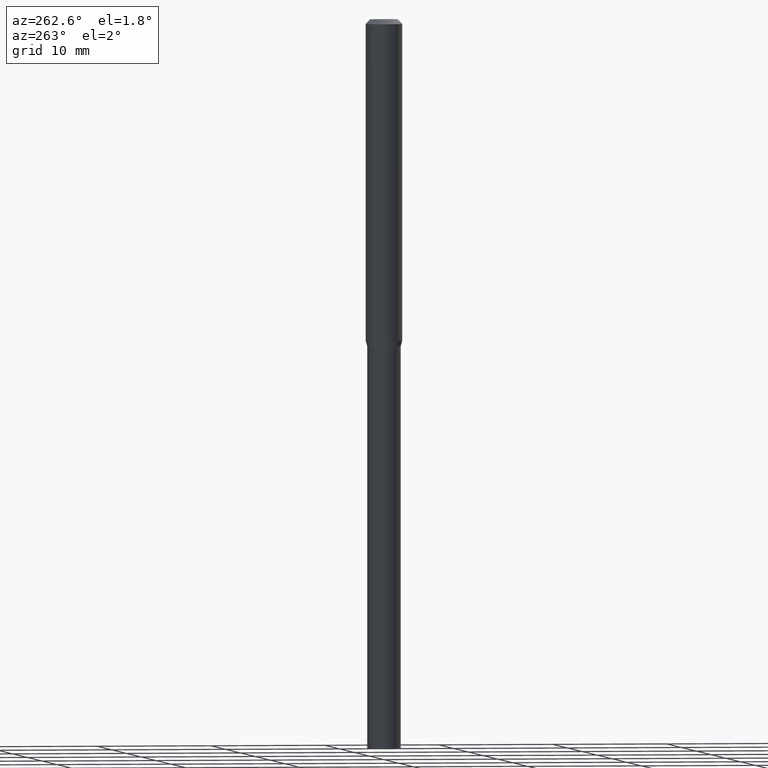
[diagram: clean part render]
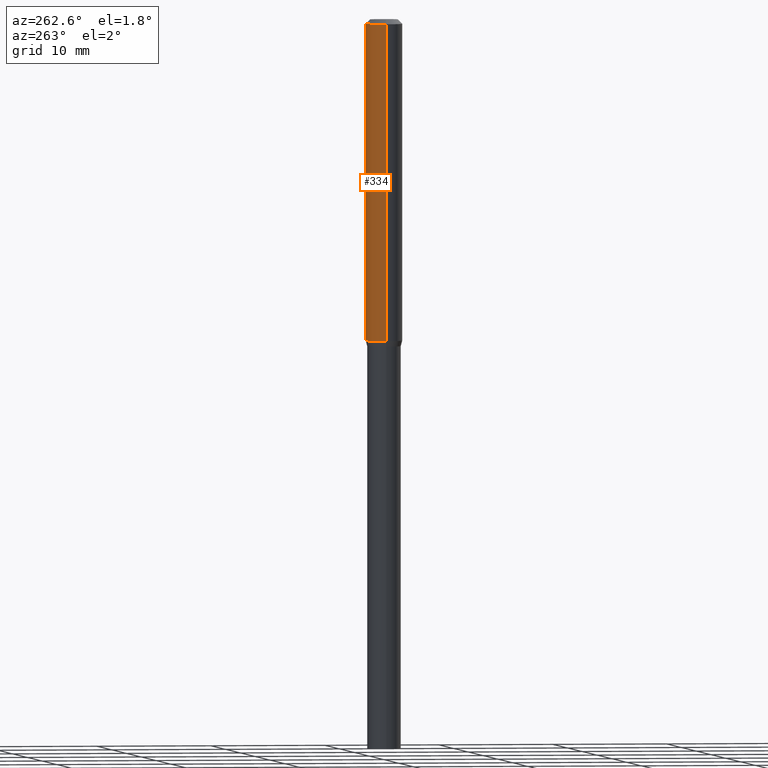
[diagram: same view with one face highlighted and labeled with its STEP entity id]
A machine part, auxiliary view. The second image highlights one B-rep face of the part: STEP entity #334.
In plain terms, the highlighted cylindrical surface (edge-blend (fillet) strip) has radius 1.5875 mm, axis along (-0, 0, 1).
Its self-contained STEP definition (entity closure, byte-faithful):
#5 = DIRECTION ( 'NONE',  ( -2.445468806185136877E-29, 3.491481338843145188E-15, 1.000000000000000000 ) ) ;
#10 = VECTOR ( 'NONE', #343, 39.37007874015748143 ) ;
#17 = ORIENTED_EDGE ( 'NONE', *, *, #66, .F. ) ;
#52 = DIRECTION ( 'NONE',  ( 1.000000000000000000, -6.982962677686266711E-15, 4.876176775795935793E-29 ) ) ;
#53 = CARTESIAN_POINT ( 'NONE',  ( -0.06250000000000000000, -3.401217960903056063E-15, -1.101339745962156336 ) ) ;
#66 = EDGE_CURVE ( 'NONE', #103, #282, #197, .T. ) ;
#85 = CARTESIAN_POINT ( 'NONE',  ( 0.06250000000000000000, -4.888073874380388472E-16, -0.01499999999999999944 ) ) ;
#103 = VERTEX_POINT ( 'NONE', #85 ) ;
#117 = FACE_OUTER_BOUND ( 'NONE', #353, .T. ) ;
#164 = VERTEX_POINT ( 'NONE', #450 ) ;
#179 = DIRECTION ( 'NONE',  ( 1.000000000000000000, -6.982962677686266711E-15, 0.000000000000000000 ) ) ;
#192 = LINE ( 'NONE', #332, #212 ) ;
#197 = CIRCLE ( 'NONE', #252, 0.06250000000000000000 ) ;
#198 = CARTESIAN_POINT ( 'NONE',  ( 0.06250000000000000000, -4.364351673553916694E-16, 3.047610484872459871E-30 ) ) ;
#201 = DIRECTION ( 'NONE',  ( 1.000000000000000000, -6.982962677686262766E-15, 0.000000000000000000 ) ) ;
#203 = VERTEX_POINT ( 'NONE', #53 ) ;
#212 = VECTOR ( 'NONE', #5, 39.37007874015748143 ) ;
#214 = CARTESIAN_POINT ( 'NONE',  ( -0.06250000000000000000, -1.504750485567820658E-15, -0.01499999999999999944 ) ) ;
#225 = ORIENTED_EDGE ( 'NONE', *, *, #357, .T. ) ;
#229 = DIRECTION ( 'NONE',  ( -2.445468806185136597E-29, 3.491481338843145583E-15, 1.000000000000000000 ) ) ;
#234 = DIRECTION ( 'NONE',  ( -2.445468806185136597E-29, 3.491481338843145583E-15, 1.000000000000000000 ) ) ;
#252 = AXIS2_PLACEMENT_3D ( 'NONE', #397, #256, #179 ) ;
#256 = DIRECTION ( 'NONE',  ( -2.445468806185136597E-29, 3.491481338843145583E-15, 1.000000000000000000 ) ) ;
#261 = ORIENTED_EDGE ( 'NONE', *, *, #372, .T. ) ;
#282 = VERTEX_POINT ( 'NONE', #214 ) ;
#283 = AXIS2_PLACEMENT_3D ( 'NONE', #435, #234, #52 ) ;
#332 = CARTESIAN_POINT ( 'NONE',  ( -0.06250000000000000000, 4.440892098500626162E-16, -3.074334431409316114E-30 ) ) ;
#334 = ADVANCED_FACE ( 'NONE', ( #117 ), #408, .T. ) ;
#339 = LINE ( 'NONE', #198, #10 ) ;
#343 = DIRECTION ( 'NONE',  ( -2.445468806185136877E-29, 3.491481338843145188E-15, 1.000000000000000000 ) ) ;
#349 = ORIENTED_EDGE ( 'NONE', *, *, #364, .F. ) ;
#353 = EDGE_LOOP ( 'NONE', ( #225, #261, #17, #349 ) ) ;
#357 = EDGE_CURVE ( 'NONE', #164, #203, #453, .T. ) ;
#364 = EDGE_CURVE ( 'NONE', #164, #103, #339, .T. ) ;
#370 = AXIS2_PLACEMENT_3D ( 'NONE', #382, #229, #201 ) ;
#372 = EDGE_CURVE ( 'NONE', #203, #282, #192, .T. ) ;
#382 = CARTESIAN_POINT ( 'NONE',  ( 2.693291993762315998E-29, -3.845307170753119074E-15, -1.101339745962156336 ) ) ;
#397 = CARTESIAN_POINT ( 'NONE',  ( 3.668203209277705088E-31, -5.237222008264718399E-17, -0.01499999999999999944 ) ) ;
#408 = CYLINDRICAL_SURFACE ( 'NONE', #283, 0.06250000000000000000 ) ;
#435 = CARTESIAN_POINT ( 'NONE',  ( 0.000000000000000000, 0.000000000000000000, 0.000000000000000000 ) ) ;
#450 = CARTESIAN_POINT ( 'NONE',  ( 0.06250000000000000000, -4.281742338108510743E-15, -1.101339745962156336 ) ) ;
#453 = CIRCLE ( 'NONE', #370, 0.06250000000000000000 ) ;